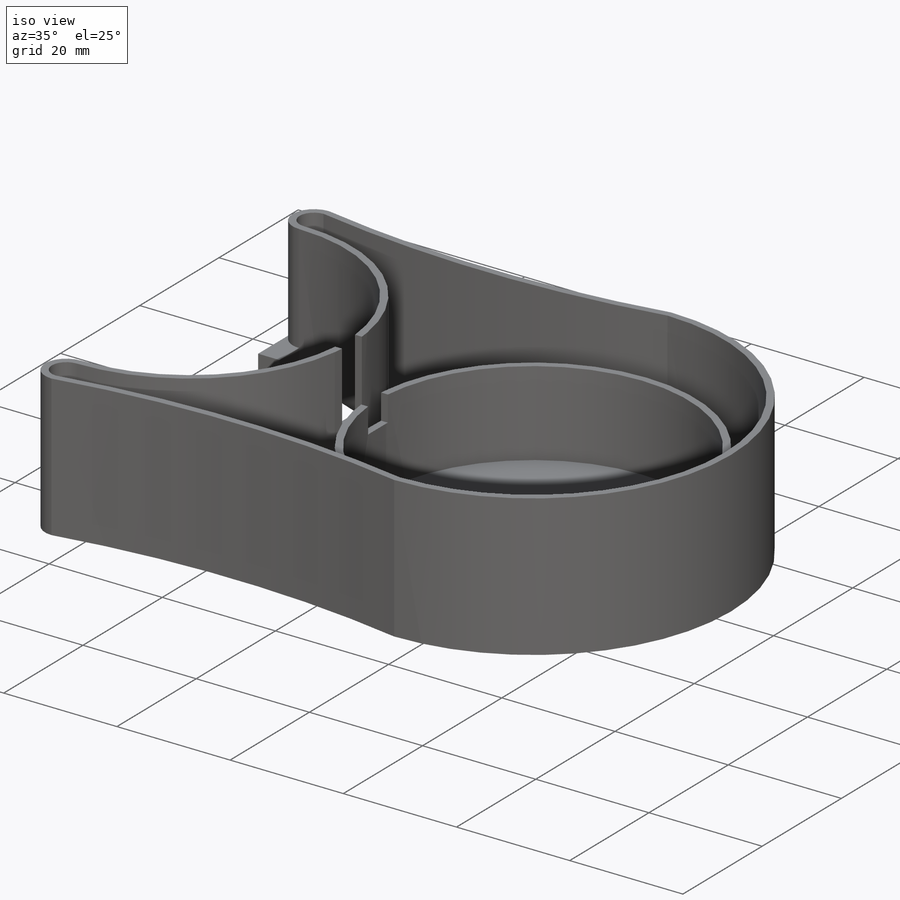
[diagram: iso view]
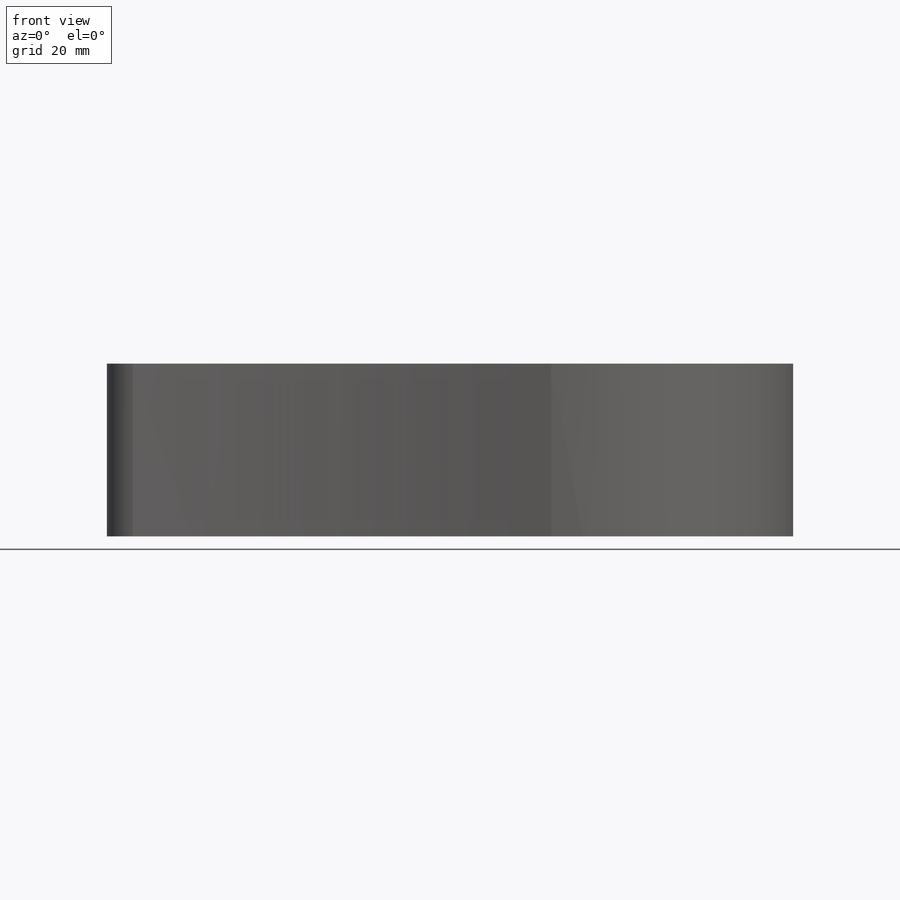
[diagram: front view]
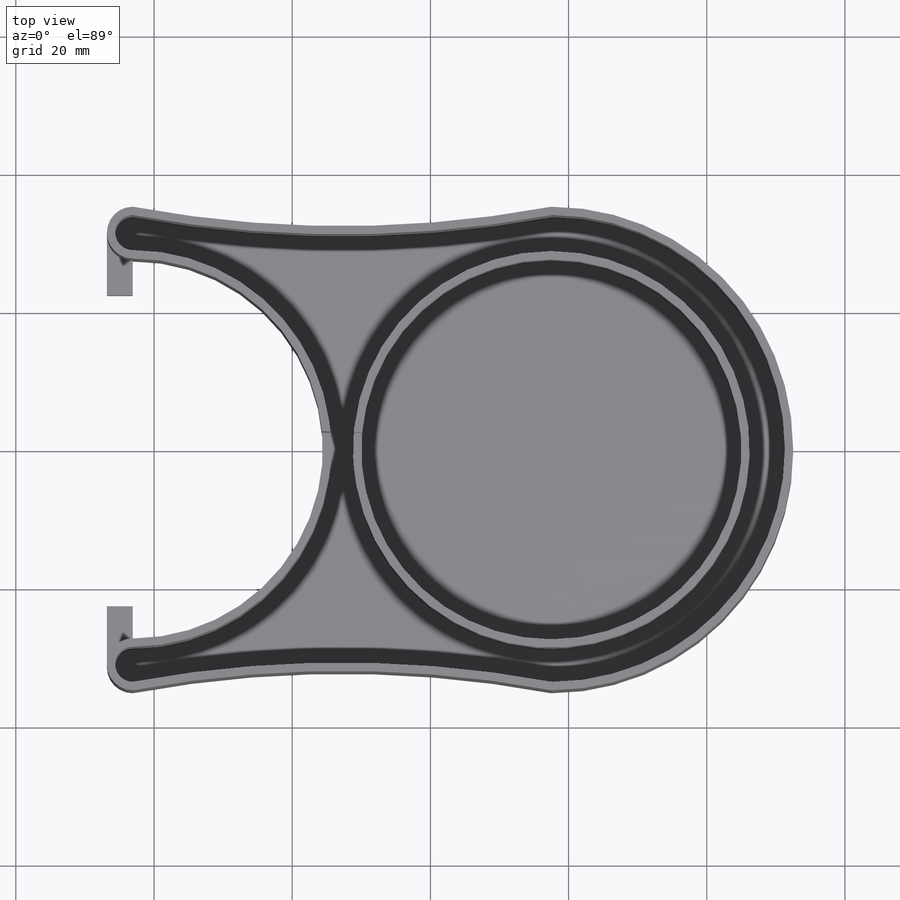
[diagram: top view]
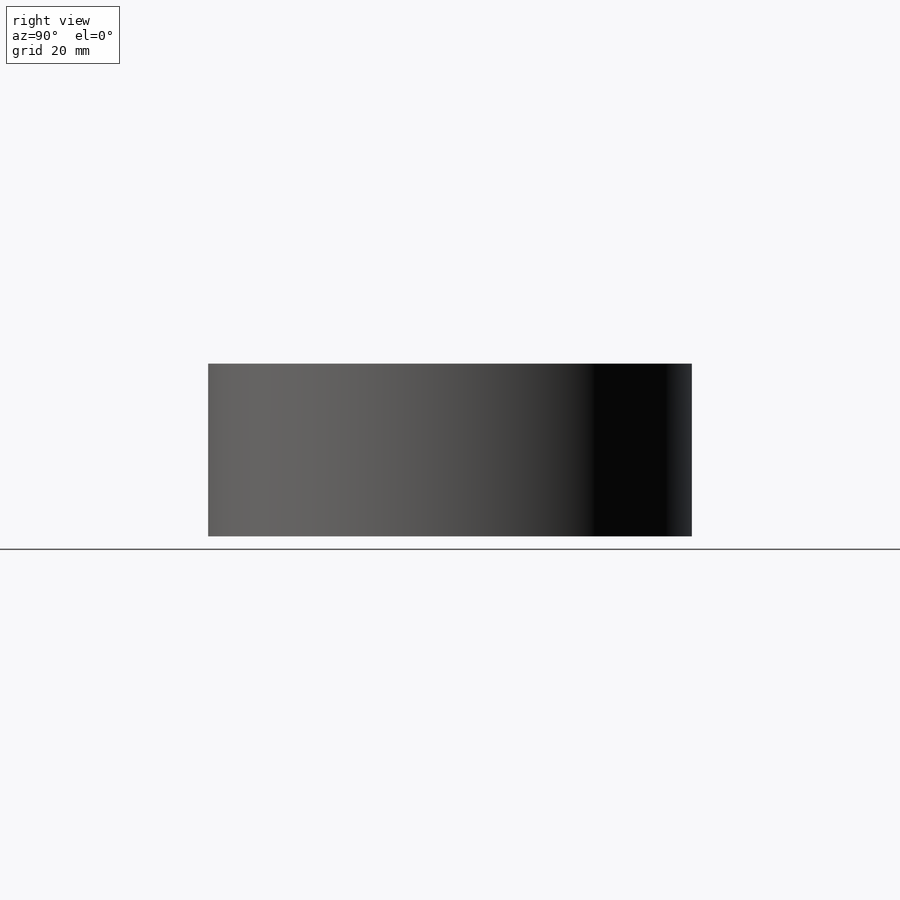
[diagram: right view]
SOLIDWORKS PART (.sldprt)
format: sldprt  version: not decoded by parser v0  size: 267,776 bytes
history: native  units: mm
features: sketch x6, plane x3, extrude x3, cut_extrude x3, material x1, shell x1 (+10 scaffold rows collapsed)
feature tree (27):
  scaffold x10  (default folders/planes/origin — collapsed)
  material  "Material <sin especificar>"
  plane  "Alzado"
  plane  "Planta"
  plane  "Vista lateral"
  sketch  "Croquis1"  dims[D3=55.0mm D4=165.0mm D1=130.0mm D2=70.0mm]
  extrude  "Saliente-Extruir1"  Depth=25mm
  shell  "Vaciado3"  Thickness=1.2mm
  sketch  "Croquis5"
  cut_extrude  "Cortar-Extruir1"  Depth=8mm
  sketch  "Croquis6"
  extrude  "Saliente-Extruir4"  Depth=2mm
  sketch  "Croquis7"  dims[D1=5.0mm]
  extrude  "Saliente-Extruir5"  Depth=25mm
  sketch  "Croquis8"  dims[D1=0.0mm]
  cut_extrude  "Cortar-Extruir2"  Depth=19mm
  sketch  "Croquis9"  dims[D1=5.0mm]
  cut_extrude  "Cortar-Extruir3"  Depth=12.5mm
decode coverage: 11 of 13 modeling features carry decoded parameters
note: suppression state not decoded; provenance and decode notes live in map.json
